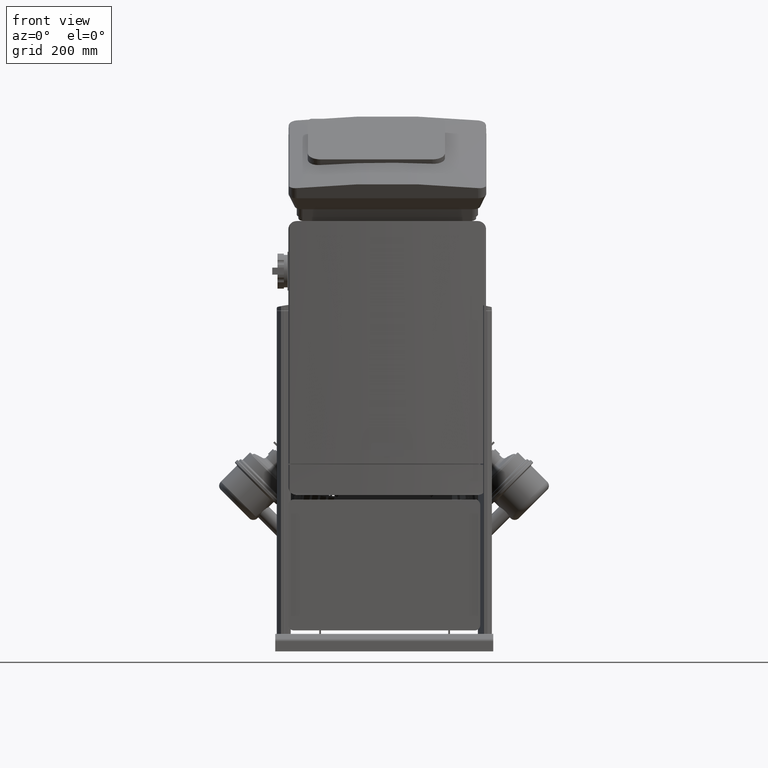
[diagram: clean part render]
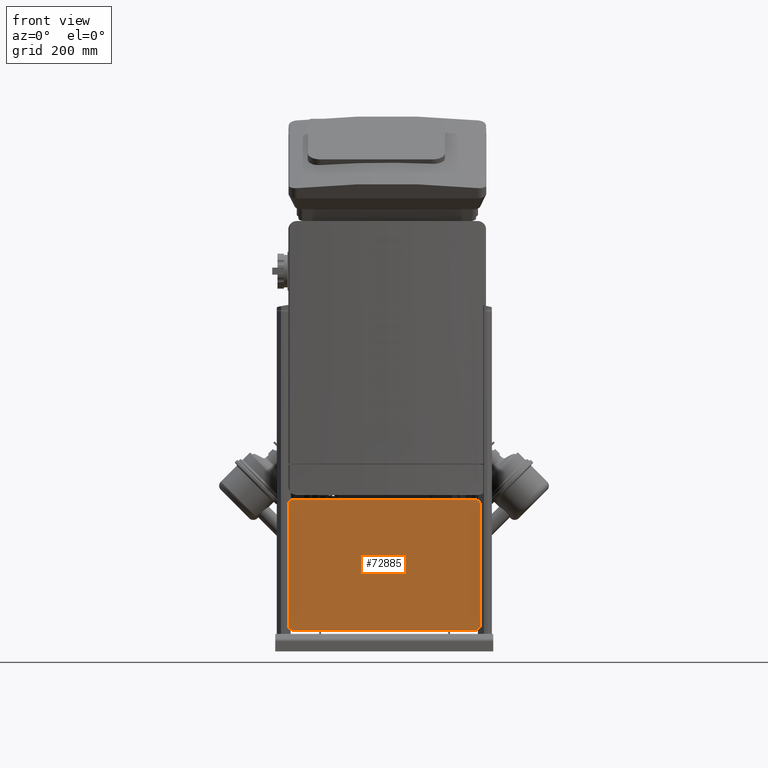
[diagram: same view with one face highlighted and labeled with its STEP entity id]
A machine part, front view. The second image highlights one B-rep face of the part: STEP entity #72885.
In plain terms, the highlighted face is a freeform B-spline surface patch.
Its self-contained STEP definition (entity closure, byte-faithful):
#71691=CARTESIAN_POINT('',(165.00000000005127,11.309656308047579,226.09999590897726));
#71692=VERTEX_POINT('',#71691);
#71701=CARTESIAN_POINT('',(165.0000000000515,11.309656308047579,19.099995908977228));
#71702=VERTEX_POINT('',#71701);
#71703=CARTESIAN_POINT('',(165.00000000005127,11.309656308047579,226.09999590897726));
#71704=DIRECTION('',(0.0,0.0,-1.0));
#71705=VECTOR('',#71704,207.00000000000003);
#71706=LINE('',#71703,#71705);
#71707=EDGE_CURVE('',#71692,#71702,#71706,.T.);
#71799=CARTESIAN_POINT('',(-164.9999999999485,11.309656308047806,19.099995908977014));
#71800=VERTEX_POINT('',#71799);
#71809=CARTESIAN_POINT('',(-164.99999999994873,11.309656308047806,226.09999590897704));
#71810=VERTEX_POINT('',#71809);
#71811=CARTESIAN_POINT('',(-164.9999999999485,11.309656308047806,19.099995908977014));
#71812=DIRECTION('',(0.0,0.0,1.0));
#71813=VECTOR('',#71812,207.00000000000003);
#71814=LINE('',#71811,#71813);
#71815=EDGE_CURVE('',#71800,#71810,#71814,.T.);
#72171=CARTESIAN_POINT('',(-155.9999999999485,11.309656308047806,10.099995908977029));
#72172=VERTEX_POINT('',#72171);
#72179=CARTESIAN_POINT('',(-155.9999999999485,11.309656308047806,19.099995908977014));
#72180=DIRECTION('',(0.0,1.0,0.0));
#72181=DIRECTION('',(1.0,0.0,0.0));
#72182=AXIS2_PLACEMENT_3D('',#72179,#72180,#72181);
#72183=CIRCLE('',#72182,9.0);
#72184=EDGE_CURVE('',#72172,#71800,#72183,.T.);
#72296=CARTESIAN_POINT('',(-155.99999999994873,11.309656308047806,235.09999590897704));
#72297=VERTEX_POINT('',#72296);
#72298=CARTESIAN_POINT('',(-155.99999999994873,11.309656308047806,226.09999590897704));
#72299=DIRECTION('',(0.0,1.0,0.0));
#72300=DIRECTION('',(1.0,0.0,0.0));
#72301=AXIS2_PLACEMENT_3D('',#72298,#72299,#72300);
#72302=CIRCLE('',#72301,9.0);
#72303=EDGE_CURVE('',#71810,#72297,#72302,.T.);
#72322=CARTESIAN_POINT('',(156.00000000005127,11.309656308047579,235.09999590897723));
#72323=VERTEX_POINT('',#72322);
#72324=CARTESIAN_POINT('',(156.00000000005127,11.309656308047579,235.09999590897723));
#72325=DIRECTION('',(-1.0,0.0,0.0));
#72326=VECTOR('',#72325,312.0);
#72327=LINE('',#72324,#72326);
#72328=EDGE_CURVE('',#72297,#72323,#72327,.F.);
#72347=CARTESIAN_POINT('',(156.00000000005127,11.309656308047579,226.09999590897726));
#72348=DIRECTION('',(0.0,1.0,0.0));
#72349=DIRECTION('',(1.0,0.0,0.0));
#72350=AXIS2_PLACEMENT_3D('',#72347,#72348,#72349);
#72351=CIRCLE('',#72350,9.0);
#72352=EDGE_CURVE('',#72323,#71692,#72351,.T.);
#72363=CARTESIAN_POINT('',(156.0000000000515,11.309656308047579,10.099995908977242));
#72364=VERTEX_POINT('',#72363);
#72365=CARTESIAN_POINT('',(156.0000000000515,11.309656308047579,19.099995908977228));
#72366=DIRECTION('',(0.0,1.0,0.0));
#72367=DIRECTION('',(1.0,0.0,0.0));
#72368=AXIS2_PLACEMENT_3D('',#72365,#72366,#72367);
#72369=CIRCLE('',#72368,9.0);
#72370=EDGE_CURVE('',#71702,#72364,#72369,.T.);
#72389=CARTESIAN_POINT('',(-155.9999999999485,11.309656308047806,10.099995908977029));
#72390=DIRECTION('',(1.0,0.0,0.0));
#72391=VECTOR('',#72390,312.0);
#72392=LINE('',#72389,#72391);
#72393=EDGE_CURVE('',#72364,#72172,#72392,.F.);
#72870=CARTESIAN_POINT('',(165.0000000000515,11.309656308047579,235.09999590897723));
#72871=CARTESIAN_POINT('',(165.0000000000515,11.309656308047579,10.099995908977007));
#72872=CARTESIAN_POINT('',(-164.99999999994873,11.309656308047579,235.09999590897723));
#72873=CARTESIAN_POINT('',(-164.99999999994873,11.309656308047579,10.099995908977007));
#72874=B_SPLINE_SURFACE_WITH_KNOTS('',1,1,((#72870,#72872),(#72871,#72873)),.UNSPECIFIED.,.F.,.F.,.U.,(2,2),(2,2),(0.0,225.00000000000023),(0.0,330.00000000000023),.UNSPECIFIED.);
#72875=ORIENTED_EDGE('',*,*,#72352,.F.);
#72876=ORIENTED_EDGE('',*,*,#72328,.F.);
#72877=ORIENTED_EDGE('',*,*,#72303,.F.);
#72878=ORIENTED_EDGE('',*,*,#71815,.F.);
#72879=ORIENTED_EDGE('',*,*,#72184,.F.);
#72880=ORIENTED_EDGE('',*,*,#72393,.F.);
#72881=ORIENTED_EDGE('',*,*,#72370,.F.);
#72882=ORIENTED_EDGE('',*,*,#71707,.F.);
#72883=EDGE_LOOP('',(#72875,#72876,#72877,#72878,#72879,#72880,#72881,#72882));
#72884=FACE_OUTER_BOUND('',#72883,.T.);
#72885=ADVANCED_FACE('',(#72884),#72874,.F.);